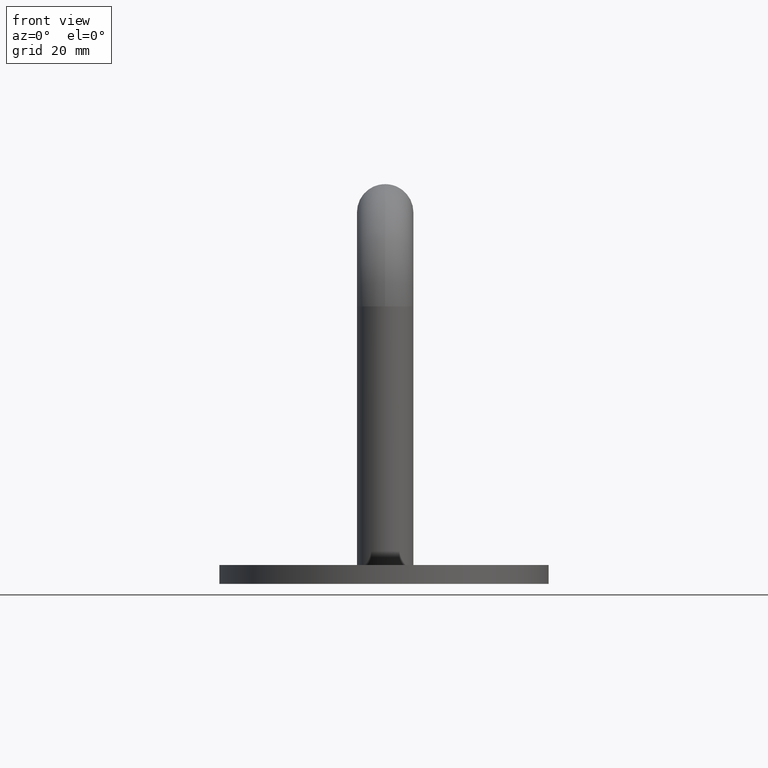
[diagram: clean part render]
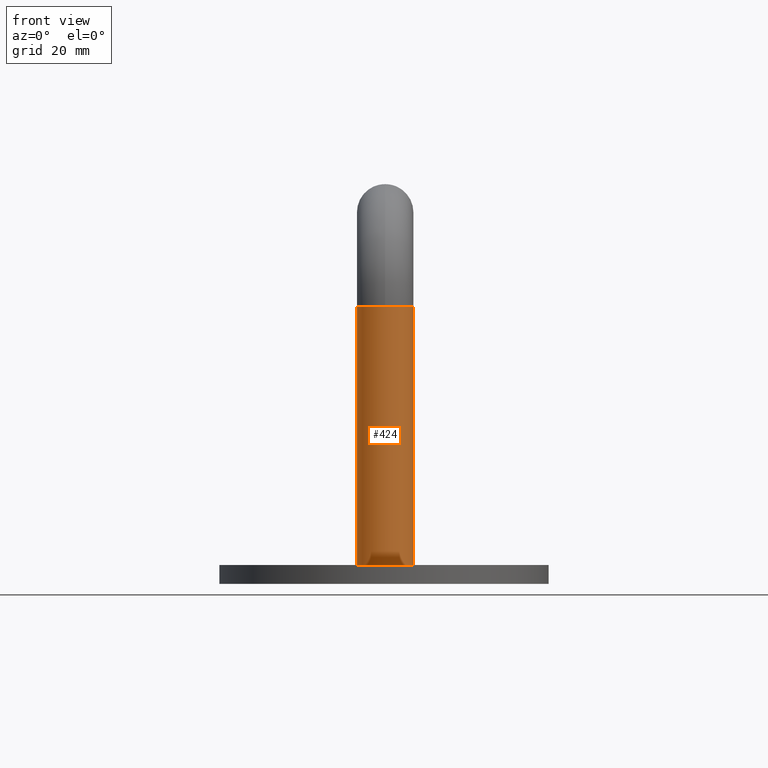
[diagram: same view with one face highlighted and labeled with its STEP entity id]
A machine part, front view. The second image highlights one B-rep face of the part: STEP entity #424.
In plain terms, the highlighted cylindrical surface (edge-blend (fillet) strip) has radius 6 mm, axis along (-0, -0, -1).
Its self-contained STEP definition (entity closure, byte-faithful):
#121 = DIRECTION ( 'NONE',  ( -1.000000000000000000, 0.0000000000000000000, 0.0000000000000000000 ) ) ;
#194 = CARTESIAN_POINT ( 'NONE',  ( -6.000000000000000900, 0.0000000000000000000, 4.000000000000003600 ) ) ;
#424 = ADVANCED_FACE ( 'NONE', ( #12859 ), #5919, .T. ) ;
#1344 = EDGE_CURVE ( 'NONE', #5757, #13525, #8578, .T. ) ;
#1720 = ORIENTED_EDGE ( 'NONE', *, *, #14244, .T. ) ;
#2131 = CARTESIAN_POINT ( 'NONE',  ( 0.0000000000000000000, 0.0000000000000000000, 4.000000000000003600 ) ) ;
#2138 = CIRCLE ( 'NONE', #13687, 6.000000000000000900 ) ;
#2161 = ORIENTED_EDGE ( 'NONE', *, *, #9317, .T. ) ;
#2188 = CARTESIAN_POINT ( 'NONE',  ( 6.000000000000000900, 7.347880794884120700E-016, 4.000000000000003600 ) ) ;
#2320 = CARTESIAN_POINT ( 'NONE',  ( -6.000000000000000900, 0.0000000000000000000, 59.00000000000000000 ) ) ;
#2674 = AXIS2_PLACEMENT_3D ( 'NONE', #4511, #10313, #5538 ) ;
#2981 = ORIENTED_EDGE ( 'NONE', *, *, #1344, .F. ) ;
#2999 = DIRECTION ( 'NONE',  ( 0.0000000000000000000, 0.0000000000000000000, -1.000000000000000000 ) ) ;
#3785 = ORIENTED_EDGE ( 'NONE', *, *, #5312, .T. ) ;
#4511 = CARTESIAN_POINT ( 'NONE',  ( 0.0000000000000000000, 0.0000000000000000000, 59.00000000000000000 ) ) ;
#5200 = DIRECTION ( 'NONE',  ( -0.0000000000000000000, -0.0000000000000000000, -1.000000000000000000 ) ) ;
#5312 = EDGE_CURVE ( 'NONE', #9849, #12164, #7630, .T. ) ;
#5538 = DIRECTION ( 'NONE',  ( -1.000000000000000000, 0.0000000000000000000, 0.0000000000000000000 ) ) ;
#5695 = VECTOR ( 'NONE', #5862, 1000.000000000000000 ) ;
#5757 = VERTEX_POINT ( 'NONE', #9106 ) ;
#5862 = DIRECTION ( 'NONE',  ( -0.0000000000000000000, -0.0000000000000000000, -1.000000000000000000 ) ) ;
#5919 = CYLINDRICAL_SURFACE ( 'NONE', #2674, 6.000000000000000900 ) ;
#6006 = EDGE_CURVE ( 'NONE', #12164, #13239, #11753, .T. ) ;
#6740 = DIRECTION ( 'NONE',  ( 0.0000000000000000000, 0.0000000000000000000, 1.000000000000000000 ) ) ;
#6769 = AXIS2_PLACEMENT_3D ( 'NONE', #8663, #2999, #7365 ) ;
#6843 = CARTESIAN_POINT ( 'NONE',  ( 0.0000000000000000000, 0.0000000000000000000, 59.00000000000000000 ) ) ;
#7365 = DIRECTION ( 'NONE',  ( -1.000000000000000000, 0.0000000000000000000, 0.0000000000000000000 ) ) ;
#7630 = CIRCLE ( 'NONE', #6769, 6.000000000000000900 ) ;
#7656 = EDGE_LOOP ( 'NONE', ( #2981, #2161, #3785, #8870, #1720 ) ) ;
#8578 = LINE ( 'NONE', #10800, #11433 ) ;
#8663 = CARTESIAN_POINT ( 'NONE',  ( 0.0000000000000000000, 0.0000000000000000000, 59.00000000000000000 ) ) ;
#8870 = ORIENTED_EDGE ( 'NONE', *, *, #6006, .T. ) ;
#9106 = CARTESIAN_POINT ( 'NONE',  ( 6.000000000000000900, 7.347880794884120700E-016, 59.00000000000000000 ) ) ;
#9199 = CARTESIAN_POINT ( 'NONE',  ( 0.0000000000000000000, -6.000000000000001800, 59.00000000000000000 ) ) ;
#9250 = CARTESIAN_POINT ( 'NONE',  ( -6.000000000000000900, 0.0000000000000000000, 59.00000000000000000 ) ) ;
#9317 = EDGE_CURVE ( 'NONE', #5757, #9849, #9934, .T. ) ;
#9849 = VERTEX_POINT ( 'NONE', #9199 ) ;
#9934 = CIRCLE ( 'NONE', #13961, 6.000000000000000900 ) ;
#10134 = DIRECTION ( 'NONE',  ( 1.000000000000000000, 0.0000000000000000000, 0.0000000000000000000 ) ) ;
#10313 = DIRECTION ( 'NONE',  ( -0.0000000000000000000, -0.0000000000000000000, -1.000000000000000000 ) ) ;
#10800 = CARTESIAN_POINT ( 'NONE',  ( 6.000000000000000900, 7.347880794884120700E-016, 59.00000000000000000 ) ) ;
#11275 = DIRECTION ( 'NONE',  ( 0.0000000000000000000, 0.0000000000000000000, -1.000000000000000000 ) ) ;
#11433 = VECTOR ( 'NONE', #5200, 1000.000000000000000 ) ;
#11753 = LINE ( 'NONE', #9250, #5695 ) ;
#12164 = VERTEX_POINT ( 'NONE', #2320 ) ;
#12859 = FACE_OUTER_BOUND ( 'NONE', #7656, .T. ) ;
#13239 = VERTEX_POINT ( 'NONE', #194 ) ;
#13525 = VERTEX_POINT ( 'NONE', #2188 ) ;
#13687 = AXIS2_PLACEMENT_3D ( 'NONE', #2131, #6740, #10134 ) ;
#13961 = AXIS2_PLACEMENT_3D ( 'NONE', #6843, #11275, #121 ) ;
#14244 = EDGE_CURVE ( 'NONE', #13239, #13525, #2138, .T. ) ;